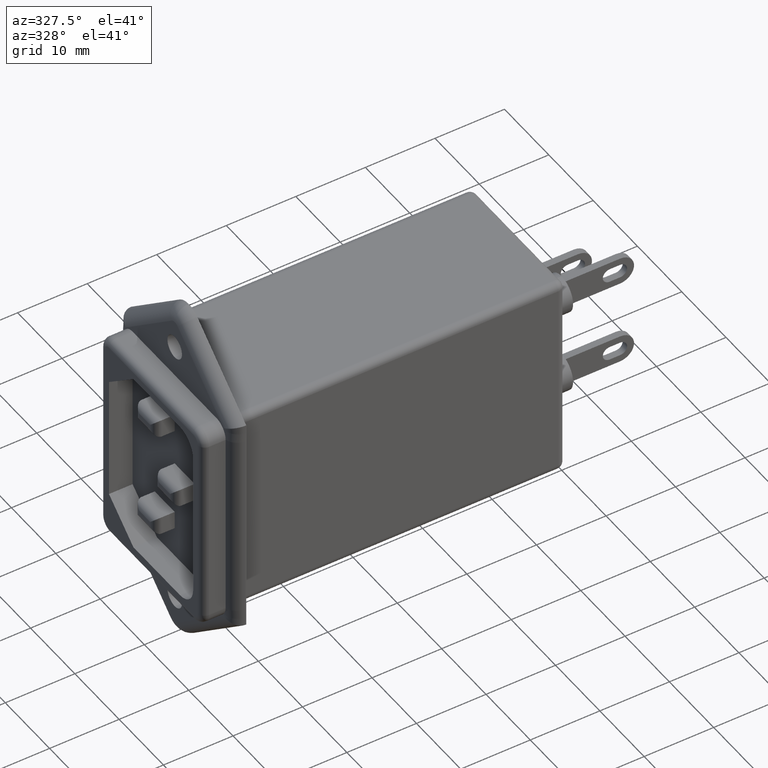
[diagram: clean part render]
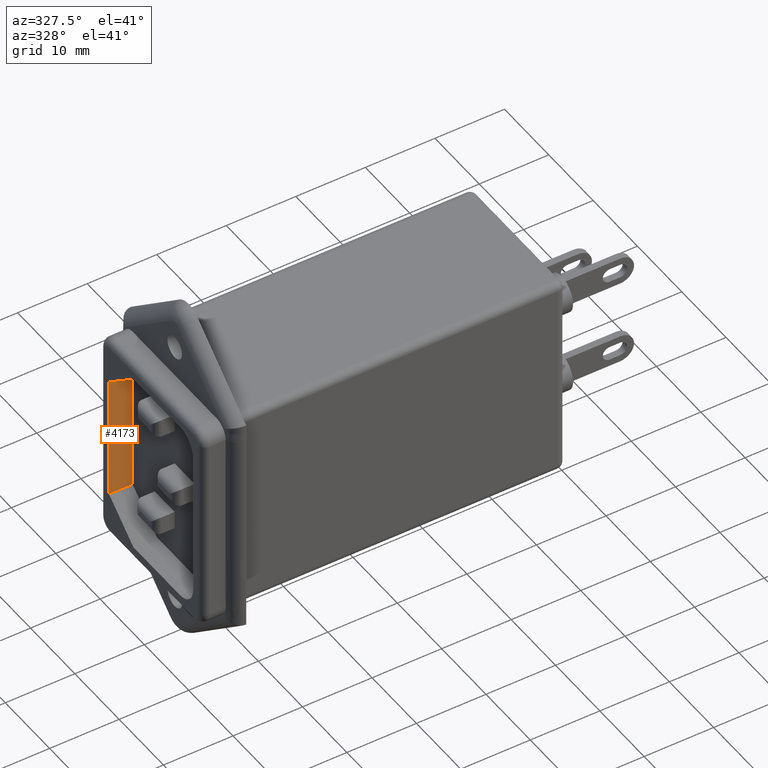
[diagram: same view with one face highlighted and labeled with its STEP entity id]
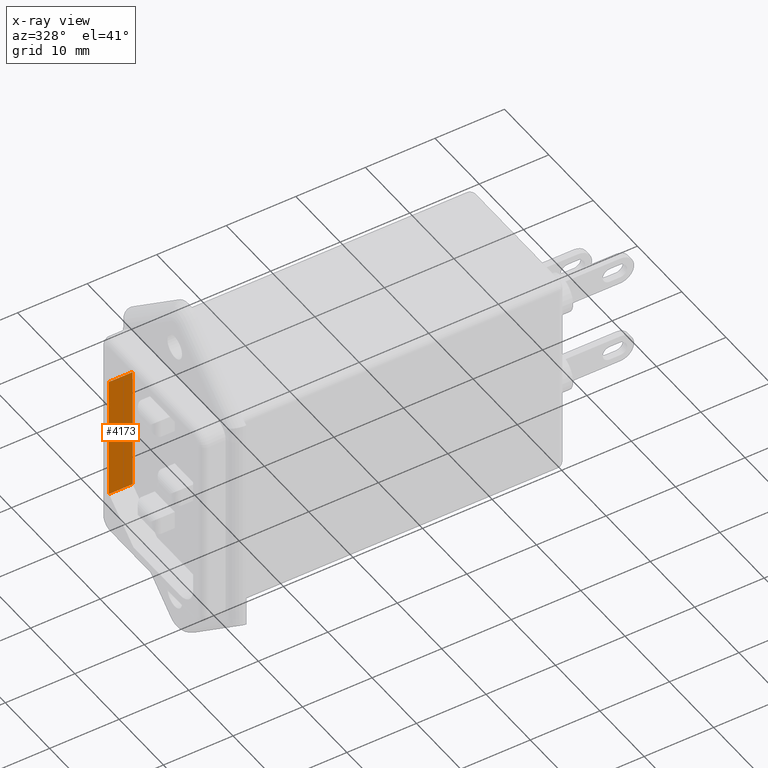
[diagram: x-ray of the same camera — body ghosted, the highlighted face saturated]
A machine part, auxiliary view. The second image highlights one B-rep face of the part: STEP entity #4173.
The next image is the same camera in x-ray: the body ghosted, the highlighted face saturated — about 0% of this face is hidden behind the body in this view.
In plain terms, the highlighted planar face has unit normal (0, 1, 0).
Its self-contained STEP definition (entity closure, byte-faithful):
#49 = VECTOR ( 'NONE', #8670, 1000.000000000000000 ) ;
#93 = VECTOR ( 'NONE', #3923, 1000.000000000000000 ) ;
#108 = VERTEX_POINT ( 'NONE', #6331 ) ;
#211 = ORIENTED_EDGE ( 'NONE', *, *, #6224, .F. ) ;
#241 = ORIENTED_EDGE ( 'NONE', *, *, #8324, .T. ) ;
#507 = CARTESIAN_POINT ( 'NONE',  ( 3.400000000000000400, -2.000000000000000000, 6.499999999999993800 ) ) ;
#784 = VECTOR ( 'NONE', #5186, 1000.000000000000000 ) ;
#881 = EDGE_CURVE ( 'NONE', #108, #2242, #5589, .T. ) ;
#917 = CARTESIAN_POINT ( 'NONE',  ( 5.500000000000000000, -2.000000000000000000, 24.49999999999999300 ) ) ;
#995 = DIRECTION ( 'NONE',  ( -1.000000000000000000, -0.0000000000000000000, -0.0000000000000000000 ) ) ;
#1198 = PLANE ( 'NONE',  #5163 ) ;
#1206 = ORIENTED_EDGE ( 'NONE', *, *, #1918, .T. ) ;
#1918 = EDGE_CURVE ( 'NONE', #2242, #6508, #7434, .T. ) ;
#2154 = LINE ( 'NONE', #507, #784 ) ;
#2242 = VERTEX_POINT ( 'NONE', #3415 ) ;
#2513 = DIRECTION ( 'NONE',  ( 0.0000000000000000000, -0.0000000000000000000, 1.000000000000000000 ) ) ;
#3415 = CARTESIAN_POINT ( 'NONE',  ( 0.0000000000000000000, -2.000000000000000000, 24.49999999999999300 ) ) ;
#3913 = CARTESIAN_POINT ( 'NONE',  ( 3.400000000000000400, -2.000000000000000000, 6.499999999999993800 ) ) ;
#3923 = DIRECTION ( 'NONE',  ( -0.0000000000000000000, -0.0000000000000000000, -1.000000000000000000 ) ) ;
#4173 = ADVANCED_FACE ( 'NONE', ( #4813 ), #1198, .F. ) ;
#4813 = FACE_OUTER_BOUND ( 'NONE', #5199, .T. ) ;
#5163 = AXIS2_PLACEMENT_3D ( 'NONE', #7914, #8342, #2513 ) ;
#5186 = DIRECTION ( 'NONE',  ( 0.0000000000000000000, -0.0000000000000000000, 1.000000000000000000 ) ) ;
#5199 = EDGE_LOOP ( 'NONE', ( #211, #241, #8329, #1206 ) ) ;
#5285 = LINE ( 'NONE', #7318, #49 ) ;
#5589 = LINE ( 'NONE', #917, #6108 ) ;
#6108 = VECTOR ( 'NONE', #995, 1000.000000000000000 ) ;
#6215 = CARTESIAN_POINT ( 'NONE',  ( 0.0000000000000000000, -2.000000000000000000, 6.499999999999993800 ) ) ;
#6224 = EDGE_CURVE ( 'NONE', #6752, #6508, #5285, .T. ) ;
#6331 = CARTESIAN_POINT ( 'NONE',  ( 3.400000000000000400, -2.000000000000000000, 24.49999999999999300 ) ) ;
#6508 = VERTEX_POINT ( 'NONE', #6215 ) ;
#6752 = VERTEX_POINT ( 'NONE', #3913 ) ;
#7318 = CARTESIAN_POINT ( 'NONE',  ( 5.500000000000000000, -2.000000000000000000, 6.499999999999993800 ) ) ;
#7434 = LINE ( 'NONE', #8606, #93 ) ;
#7914 = CARTESIAN_POINT ( 'NONE',  ( 5.500000000000000000, -2.000000000000000000, 6.499999999999993800 ) ) ;
#8324 = EDGE_CURVE ( 'NONE', #6752, #108, #2154, .T. ) ;
#8329 = ORIENTED_EDGE ( 'NONE', *, *, #881, .T. ) ;
#8342 = DIRECTION ( 'NONE',  ( 0.0000000000000000000, 1.000000000000000000, 0.0000000000000000000 ) ) ;
#8606 = CARTESIAN_POINT ( 'NONE',  ( 0.0000000000000000000, -2.000000000000000000, 6.499999999999993800 ) ) ;
#8670 = DIRECTION ( 'NONE',  ( -1.000000000000000000, -0.0000000000000000000, -0.0000000000000000000 ) ) ;